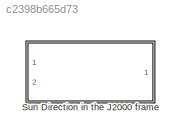
MODEL slx_c2398b665d73
KIND library
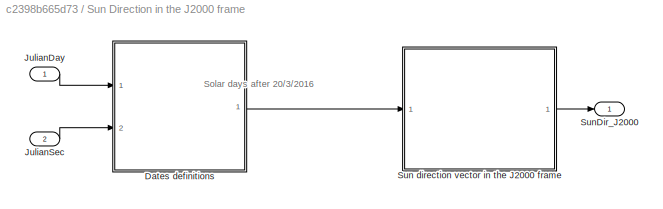
BLOCK [SubSystem] Sun Direction in the J2000 frame
  Ports = [2, 1]
  RequestExecContextInheritance = off
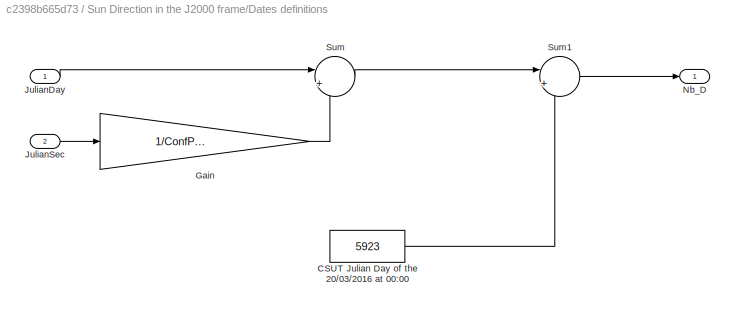
BLOCK [SubSystem] Sun Direction in the J2000 frame/Dates definitions
  Ports = [2, 1]
  RequestExecContextInheritance = off
BLOCK [Constant] Sun Direction in the J2000 frame/Dates definitions/CSUT Julian Day of the 20//03//2016 at 00:00
  Value = 5923
BLOCK [Gain] Sun Direction in the J2000 frame/Dates definitions/Gain
  Gain = 1/ConfParam.confConst.SolarDay
  OutDataTypeStr = Inherit: Inherit via internal rule
  ParamDataTypeStr = Inherit: Inherit via internal rule
  SaturateOnIntegerOverflow = off
BLOCK [Inport] Sun Direction in the J2000 frame/Dates definitions/JulianDay
  IconDisplay = Port number
BLOCK [Inport] Sun Direction in the J2000 frame/Dates definitions/JulianSec
  IconDisplay = Port number
  Port = 2
BLOCK [Outport] Sun Direction in the J2000 frame/Dates definitions/Nb_D
  IconDisplay = Port number
BLOCK [Sum] Sun Direction in the J2000 frame/Dates definitions/Sum
  IconShape = round
  InputSameDT = off
  Inputs = |++
  OutDataTypeStr = Inherit: Inherit via internal rule
  Ports = [2, 1]
  SaturateOnIntegerOverflow = off
BLOCK [Sum] Sun Direction in the J2000 frame/Dates definitions/Sum1
  IconShape = round
  InputSameDT = off
  Inputs = |+-
  OutDataTypeStr = Inherit: Inherit via internal rule
  Ports = [2, 1]
  SaturateOnIntegerOverflow = off
BLOCK [Inport] Sun Direction in the J2000 frame/JulianDay
  IconDisplay = Port number
BLOCK [Inport] Sun Direction in the J2000 frame/JulianSec
  IconDisplay = Port number
  Port = 2
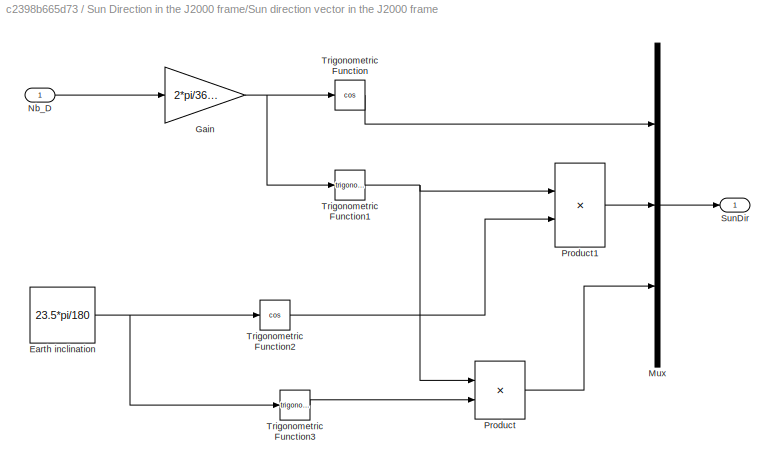
BLOCK [SubSystem] Sun Direction in the J2000 frame/Sun direction vector in the J2000 frame
  Ports = [1, 1]
  RequestExecContextInheritance = off
BLOCK [Constant] Sun Direction in the J2000 frame/Sun direction vector in the J2000 frame/Earth inclination
  Value = 23.5*pi/180
BLOCK [Gain] Sun Direction in the J2000 frame/Sun direction vector in the J2000 frame/Gain
  Gain = 2*pi/365.25
  OutDataTypeStr = Inherit: Inherit via internal rule
  ParamDataTypeStr = Inherit: Inherit via internal rule
  SaturateOnIntegerOverflow = off
BLOCK [Mux] Sun Direction in the J2000 frame/Sun direction vector in the J2000 frame/Mux
  DisplayOption = bar
  Inputs = 3
  Ports = [3, 1]
BLOCK [Inport] Sun Direction in the J2000 frame/Sun direction vector in the J2000 frame/Nb_D
  IconDisplay = Port number
BLOCK [Product] Sun Direction in the J2000 frame/Sun direction vector in the J2000 frame/Product
  InputSameDT = off
  Inputs = **
  OutDataTypeStr = Inherit: Inherit via internal rule
  Ports = [2, 1]
  RndMeth = Floor
  SaturateOnIntegerOverflow = off
BLOCK [Product] Sun Direction in the J2000 frame/Sun direction vector in the J2000 frame/Product1
  InputSameDT = off
  Inputs = **
  OutDataTypeStr = Inherit: Inherit via internal rule
  Ports = [2, 1]
  RndMeth = Floor
  SaturateOnIntegerOverflow = off
BLOCK [Outport] Sun Direction in the J2000 frame/Sun direction vector in the J2000 frame/SunDir
  IconDisplay = Port number
BLOCK [Trigonometry] Sun Direction in the J2000 frame/Sun direction vector in the J2000 frame/Trigonometric Function
  Operator = cos
  Ports = [1, 1]
BLOCK [Trigonometry] Sun Direction in the J2000 frame/Sun direction vector in the J2000 frame/Trigonometric Function1
  Ports = [1, 1]
BLOCK [Trigonometry] Sun Direction in the J2000 frame/Sun direction vector in the J2000 frame/Trigonometric Function2
  Operator = cos
  Ports = [1, 1]
BLOCK [Trigonometry] Sun Direction in the J2000 frame/Sun direction vector in the J2000 frame/Trigonometric Function3
  Ports = [1, 1]
BLOCK [Outport] Sun Direction in the J2000 frame/SunDir_J2000
  IconDisplay = Port number
ANNOTATION Sun Direction in the J2000 frame: Solar days after 20/3/2016
LINE Sun Direction in the J2000 frame/Dates definitions/CSUT Julian Day of the 20//03//2016 at 00:00:1 -> Sun Direction in the J2000 frame/Dates definitions/Sum1:2
LINE Sun Direction in the J2000 frame/Dates definitions/Gain:1 -> Sun Direction in the J2000 frame/Dates definitions/Sum:2
LINE Sun Direction in the J2000 frame/Dates definitions/JulianDay:1 -> Sun Direction in the J2000 frame/Dates definitions/Sum:1
LINE Sun Direction in the J2000 frame/Dates definitions/JulianSec:1 -> Sun Direction in the J2000 frame/Dates definitions/Gain:1
LINE Sun Direction in the J2000 frame/Dates definitions/Sum1:1 -> Sun Direction in the J2000 frame/Dates definitions/Nb_D:1
LINE Sun Direction in the J2000 frame/Dates definitions/Sum:1 -> Sun Direction in the J2000 frame/Dates definitions/Sum1:1
LINE Sun Direction in the J2000 frame/Dates definitions:1 -> Sun Direction in the J2000 frame/Sun direction vector in the J2000 frame:1
LINE Sun Direction in the J2000 frame/JulianDay:1 -> Sun Direction in the J2000 frame/Dates definitions:1
LINE Sun Direction in the J2000 frame/JulianSec:1 -> Sun Direction in the J2000 frame/Dates definitions:2
NET Sun Direction in the J2000 frame/Sun direction vector in the J2000 frame/Earth inclination:1 -> Sun Direction in the J2000 frame/Sun direction vector in the J2000 frame/Trigonometric Function2:1, Sun Direction in the J2000 frame/Sun direction vector in the J2000 frame/Trigonometric Function3:1
NET Sun Direction in the J2000 frame/Sun direction vector in the J2000 frame/Gain:1 -> Sun Direction in the J2000 frame/Sun direction vector in the J2000 frame/Trigonometric Function1:1, Sun Direction in the J2000 frame/Sun direction vector in the J2000 frame/Trigonometric Function:1
LINE Sun Direction in the J2000 frame/Sun direction vector in the J2000 frame/Mux:1 -> Sun Direction in the J2000 frame/Sun direction vector in the J2000 frame/SunDir:1
LINE Sun Direction in the J2000 frame/Sun direction vector in the J2000 frame/Nb_D:1 -> Sun Direction in the J2000 frame/Sun direction vector in the J2000 frame/Gain:1
LINE Sun Direction in the J2000 frame/Sun direction vector in the J2000 frame/Product1:1 -> Sun Direction in the J2000 frame/Sun direction vector in the J2000 frame/Mux:2
LINE Sun Direction in the J2000 frame/Sun direction vector in the J2000 frame/Product:1 -> Sun Direction in the J2000 frame/Sun direction vector in the J2000 frame/Mux:3
NET Sun Direction in the J2000 frame/Sun direction vector in the J2000 frame/Trigonometric Function1:1 -> Sun Direction in the J2000 frame/Sun direction vector in the J2000 frame/Product1:1, Sun Direction in the J2000 frame/Sun direction vector in the J2000 frame/Product:1
LINE Sun Direction in the J2000 frame/Sun direction vector in the J2000 frame/Trigonometric Function2:1 -> Sun Direction in the J2000 frame/Sun direction vector in the J2000 frame/Product1:2
LINE Sun Direction in the J2000 frame/Sun direction vector in the J2000 frame/Trigonometric Function3:1 -> Sun Direction in the J2000 frame/Sun direction vector in the J2000 frame/Product:2
LINE Sun Direction in the J2000 frame/Sun direction vector in the J2000 frame/Trigonometric Function:1 -> Sun Direction in the J2000 frame/Sun direction vector in the J2000 frame/Mux:1
LINE Sun Direction in the J2000 frame/Sun direction vector in the J2000 frame:1 -> Sun Direction in the J2000 frame/SunDir_J2000:1
note: NET lines group one-source signal fan-out (src -> all destinations, sorted); 1:1 wires keep LINE
